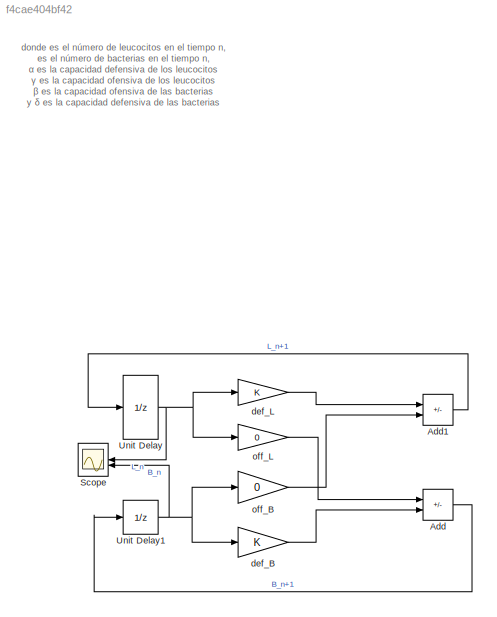
MODEL slx_f4cae404bf42
KIND model
CONFIG AbsTol = auto
CONFIG EnableMultiTasking = off
CONFIG FixedStep = 1
CONFIG MaxStep = auto
CONFIG MinStep = auto
CONFIG RelTol = 1e-3
CONFIG SampleTimeConstraint = Unconstrained
CONFIG SolverName = FixedStepDiscrete
CONFIG StartTime = 0.0
CONFIG StopTime = 10.0
BLOCK [Sum] Add
  IconShape = rectangular
  Inputs = -+
BLOCK [Sum] Add1
  IconShape = rectangular
  Inputs = +-
BLOCK [Scope] Scope
  Floating = off
  NumInputPorts = 2
  ScopeSpecificationString = Simulink.scopes.TimeScopeBlockCfg('CurrentConfiguration', extmgr.ConfigurationSet(extmgr.Configuration('Core','General UI',true),extmgr.Configuration('Core','Source UI',true),extmgr.Configuration('Sources','WiredSimulink',true),extmgr.Configuration('Visuals','Time Domain',true,'SerializedDisplays',{struct('MinYLimReal','7750.00000','MaxYLimReal','10250.00000','YLabelReal','','MinYLimMag','7750.000...<+1404ch>
BLOCK [UnitDelay] Unit Delay
  HasFrameUpgradeWarning = on
  InitialCondition = 8000
  SampleTime = -1
BLOCK [UnitDelay] Unit Delay1
  HasFrameUpgradeWarning = on
  InitialCondition = 10000
  SampleTime = -1
BLOCK [Gain] def_B
BLOCK [Gain] def_L
BLOCK [Gain] off_B
  Gain = 0
BLOCK [Gain] off_L
  Gain = 0
ANNOTATION (root): donde es el número de leucocitos en el tiempo n, es el número de bacterias en el tiempo n, α es la capacidad defensiva de los leucocitos γ es la capacidad ofensiva de los leucocitos β es la capacidad ofensiva de las bacterias y δ es la capacidad defensiva de las bacterias
LINE Add1:1 -> Unit Delay:1
LINE Add:1 -> Unit Delay1:1
NET Unit Delay1:1 -> Scope:2, def_B:1, off_B:1
NET Unit Delay:1 -> Scope:1, def_L:1, off_L:1
LINE def_B:1 -> Add:2
LINE def_L:1 -> Add1:1
LINE off_B:1 -> Add1:2
LINE off_L:1 -> Add:1
note: NET lines group one-source signal fan-out (src -> all destinations, sorted); 1:1 wires keep LINE
